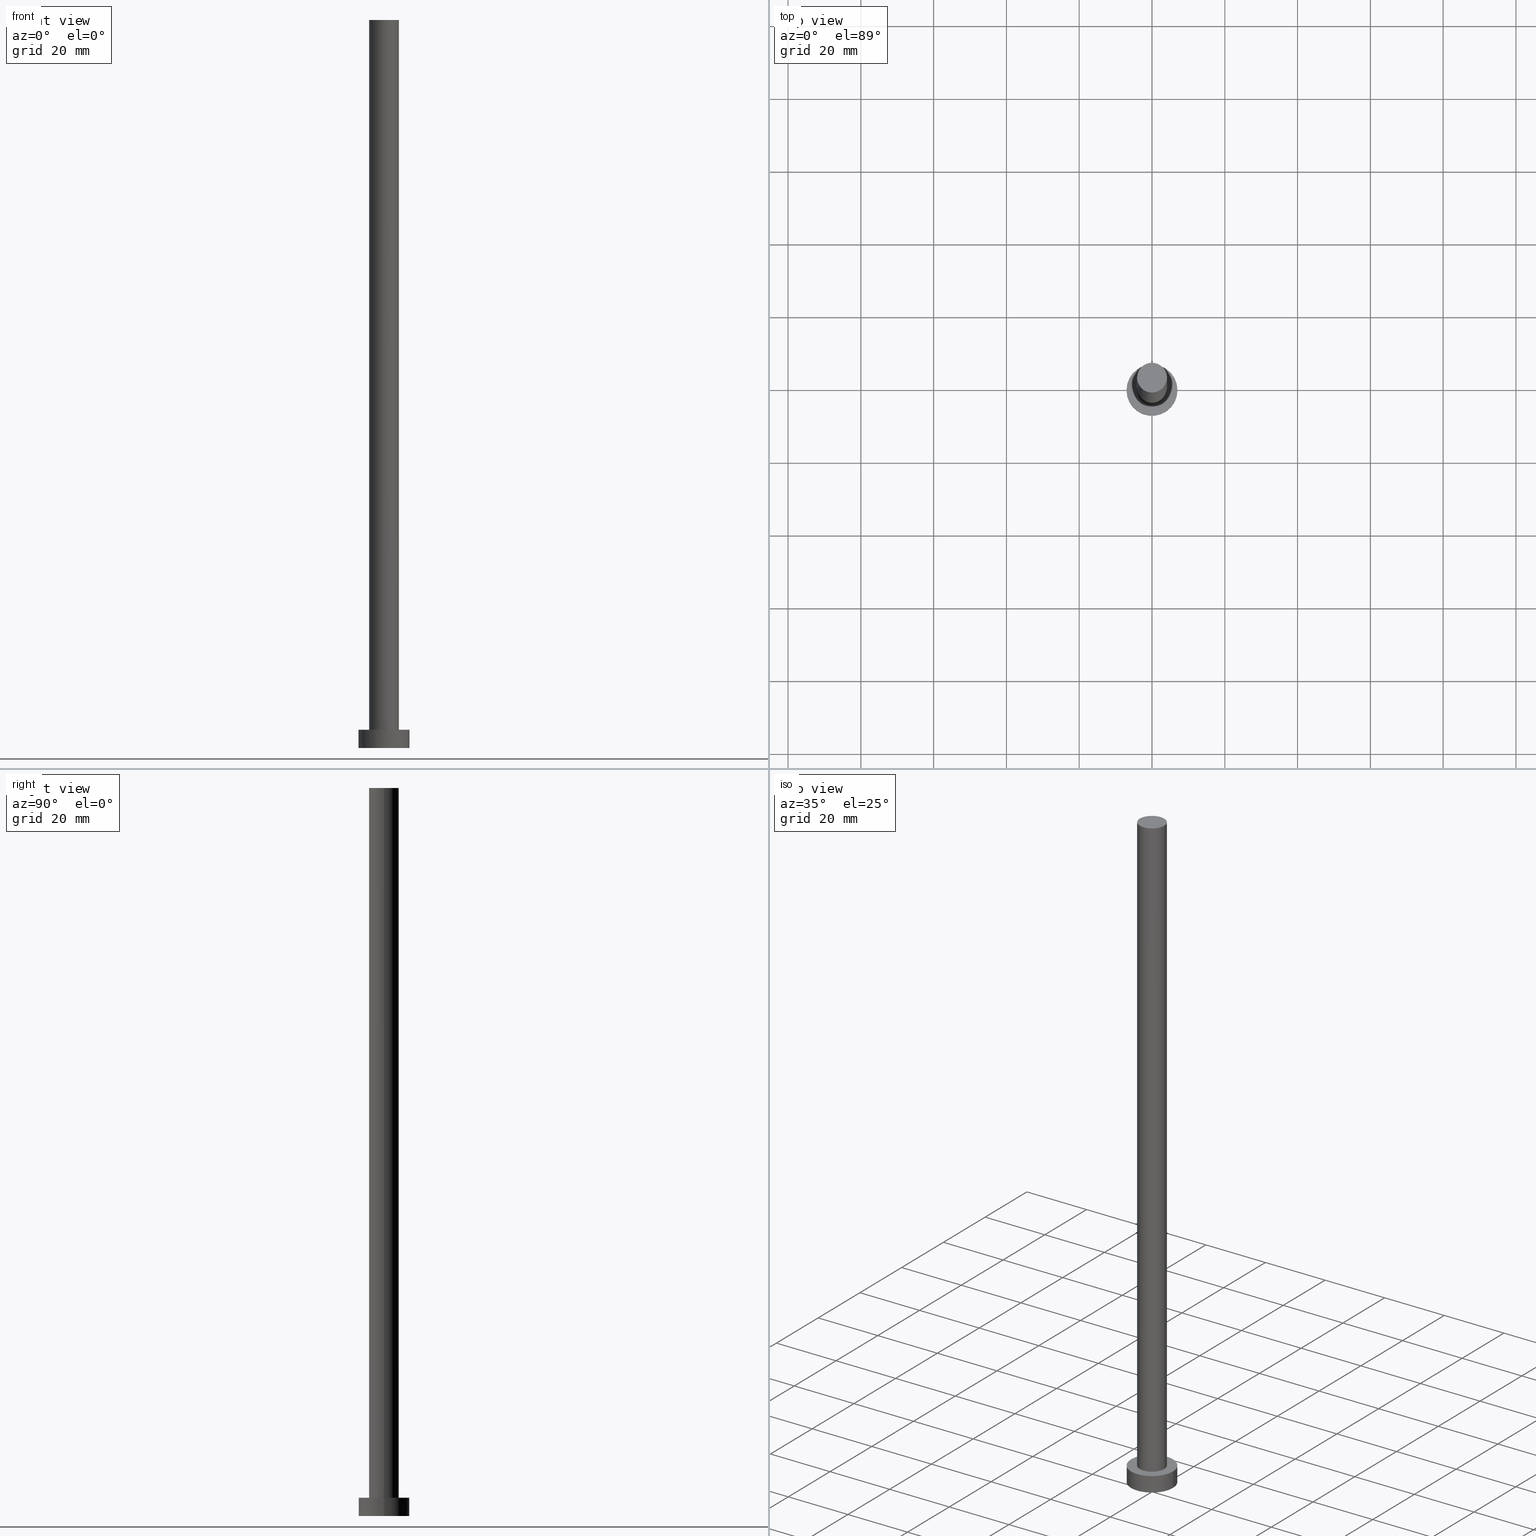
[diagram: canonical four-view strip — front | top / right | iso, engineering-drawing reading convention]
A machine part, canonical four-view strip (front | top / right | iso — engineering-drawing reading convention). The complete STEP part file that produces these views, byte-faithful:
ISO-10303-21;
HEADER;
FILE_DESCRIPTION (( 'STEP AP203' ),
    '1' );
FILE_NAME ('7127.STEP',
    '2023-02-12T11:18:13',
    ( '' ),
    ( '' ),
    'SwSTEP 2.0',
    'SolidWorks 2019',
    '' );
FILE_SCHEMA (( 'CONFIG_CONTROL_DESIGN' ));
ENDSEC;

DATA;
#1 = MANIFOLD_SOLID_BREP ( 'P�idat vysunut�m3', #26 ) ;
#2 = APPROVAL_DATE_TIME ( #42, #80 ) ;
#3 = DATE_AND_TIME ( #181, #213 ) ;
#4 = ORIENTED_EDGE ( 'NONE', *, *, #106, .T. ) ;
#5 = ADVANCED_FACE ( 'NONE', ( #139 ), #6, .T. ) ;
#6 = CYLINDRICAL_SURFACE ( 'NONE', #115, 7.000000000000000000 ) ;
#7 = DIRECTION ( 'NONE',  ( -0.000000000000000000, -0.000000000000000000, -1.000000000000000000 ) ) ;
#8 = ORIENTED_EDGE ( 'NONE', *, *, #95, .T. ) ;
#9 = FACE_BOUND ( 'NONE', #131, .T. ) ;
#10 = EDGE_CURVE ( 'NONE', #21, #197, #218, .T. ) ;
#11 = DIRECTION ( 'NONE',  ( 0.000000000000000000, 0.000000000000000000, 1.000000000000000000 ) ) ;
#12 = UNCERTAINTY_MEASURE_WITH_UNIT (LENGTH_MEASURE( 1.000000000000000082E-05 ), #13, 'distance_accuracy_value', 'NONE');
#13 =( LENGTH_UNIT ( ) NAMED_UNIT ( * ) SI_UNIT ( .MILLI., .METRE. ) );
#14 = FACE_OUTER_BOUND ( 'NONE', #149, .T. ) ;
#15 = CARTESIAN_POINT ( 'NONE',  ( 0.000000000000000000, 0.000000000000000000, 5.000000000000000000 ) ) ;
#16 = PERSON_AND_ORGANIZATION ( #193, #120 ) ;
#17 = EDGE_CURVE ( 'NONE', #38, #197, #123, .T. ) ;
#18 = EDGE_CURVE ( 'NONE', #178, #97, #163, .T. ) ;
#19 = ORIENTED_EDGE ( 'NONE', *, *, #49, .F. ) ;
#20 = APPROVAL_STATUS ( 'not_yet_approved' ) ;
#21 = VERTEX_POINT ( 'NONE', #117 ) ;
#22 = PERSON_AND_ORGANIZATION ( #193, #120 ) ;
#23 = ORIENTED_EDGE ( 'NONE', *, *, #52, .T. ) ;
#24 = DIRECTION ( 'NONE',  ( -0.000000000000000000, -0.000000000000000000, -1.000000000000000000 ) ) ;
#25 = APPLICATION_CONTEXT ( 'configuration controlled 3d designs of mechanical parts and assemblies' ) ;
#26 = CLOSED_SHELL ( 'NONE', ( #45, #5, #151, #56, #129, #224, #227 ) ) ;
#27 = CARTESIAN_POINT ( 'NONE',  ( 0.000000000000000000, 0.000000000000000000, 5.000000000000000000 ) ) ;
#28 = LINE ( 'NONE', #101, #254 ) ;
#29 = DIRECTION ( 'NONE',  ( 0.000000000000000000, 0.000000000000000000, 1.000000000000000000 ) ) ;
#30 = CARTESIAN_POINT ( 'NONE',  ( 0.000000000000000000, 0.000000000000000000, 5.000000000000000000 ) ) ;
#31 = AXIS2_PLACEMENT_3D ( 'NONE', #27, #85, #161 ) ;
#32 = CARTESIAN_POINT ( 'NONE',  ( 4.099999999999999645, 5.021051876504147385E-16, 200.0000000000000000 ) ) ;
#33 = ADVANCED_BREP_SHAPE_REPRESENTATION ( '7127', ( #1, #236 ), #132 ) ;
#34 = DIRECTION ( 'NONE',  ( -0.000000000000000000, -0.000000000000000000, -1.000000000000000000 ) ) ;
#35 = AXIS2_PLACEMENT_3D ( 'NONE', #169, #223, #205 ) ;
#36 = SECURITY_CLASSIFICATION ( '', '', #148 ) ;
#37 = CC_DESIGN_PERSON_AND_ORGANIZATION_ASSIGNMENT ( #194, #232, ( #141 ) ) ;
#38 = VERTEX_POINT ( 'NONE', #83 ) ;
#39 = ORIENTED_EDGE ( 'NONE', *, *, #231, .F. ) ;
#40 = APPROVAL_ROLE ( '' ) ;
#41 = ORIENTED_EDGE ( 'NONE', *, *, #231, .T. ) ;
#42 = DATE_AND_TIME ( #147, #71 ) ;
#43 = LOCAL_TIME ( 12, 18, 13.00000000000000000, #255 ) ;
#44 = VERTEX_POINT ( 'NONE', #67 ) ;
#45 = ADVANCED_FACE ( 'NONE', ( #64 ), #188, .T. ) ;
#46 = DIRECTION ( 'NONE',  ( -0.000000000000000000, -0.000000000000000000, -1.000000000000000000 ) ) ;
#47 = CARTESIAN_POINT ( 'NONE',  ( 0.000000000000000000, 0.000000000000000000, 0.000000000000000000 ) ) ;
#48 = APPROVAL_PERSON_ORGANIZATION ( #195, #159, #40 ) ;
#49 = EDGE_CURVE ( 'NONE', #44, #21, #109, .T. ) ;
#50 = DIRECTION ( 'NONE',  ( 1.000000000000000000, 0.000000000000000000, 0.000000000000000000 ) ) ;
#51 = DIRECTION ( 'NONE',  ( -1.000000000000000000, 0.000000000000000000, 0.000000000000000000 ) ) ;
#52 = EDGE_CURVE ( 'NONE', #235, #108, #251, .T. ) ;
#53 = DIRECTION ( 'NONE',  ( 0.000000000000000000, 0.000000000000000000, 1.000000000000000000 ) ) ;
#54 = MECHANICAL_CONTEXT ( 'NONE', #25, 'mechanical' ) ;
#55 = CC_DESIGN_APPROVAL ( #80, ( #141 ) ) ;
#56 = ADVANCED_FACE ( 'NONE', ( #9, #166 ), #203, .T. ) ;
#57 = APPROVAL ( #20, 'NEUR�EN�' ) ;
#58 = EDGE_LOOP ( 'NONE', ( #210, #128, #4, #8 ) ) ;
#59 = DATE_AND_TIME ( #60, #94 ) ;
#60 = CALENDAR_DATE ( 2023, 12, 2 ) ;
#61 = AXIS2_PLACEMENT_3D ( 'NONE', #221, #102, #162 ) ;
#62 = ORIENTED_EDGE ( 'NONE', *, *, #247, .T. ) ;
#63 = PRODUCT ( '7127', '7127', '', ( #54 ) ) ;
#64 = FACE_OUTER_BOUND ( 'NONE', #113, .T. ) ;
#65 = CARTESIAN_POINT ( 'NONE',  ( -4.099999999999999645, 0.000000000000000000, 200.0000000000000000 ) ) ;
#66 = AXIS2_PLACEMENT_3D ( 'NONE', #15, #72, #70 ) ;
#67 = CARTESIAN_POINT ( 'NONE',  ( 4.099999999999999645, 5.021051876504147385E-16, 200.0000000000000000 ) ) ;
#68 = CARTESIAN_POINT ( 'NONE',  ( -7.000000000000000000, 0.000000000000000000, 0.000000000000000000 ) ) ;
#69 = CARTESIAN_POINT ( 'NONE',  ( 0.000000000000000000, 0.000000000000000000, 200.0000000000000000 ) ) ;
#70 = DIRECTION ( 'NONE',  ( 1.000000000000000000, 0.000000000000000000, 0.000000000000000000 ) ) ;
#71 = LOCAL_TIME ( 12, 18, 13.00000000000000000, #74 ) ;
#72 = DIRECTION ( 'NONE',  ( 0.000000000000000000, 0.000000000000000000, 1.000000000000000000 ) ) ;
#73 = LINE ( 'NONE', #32, #179 ) ;
#74 = COORDINATED_UNIVERSAL_TIME_OFFSET ( 1, 0, .AHEAD. ) ;
#75 = APPROVAL_DATE_TIME ( #59, #57 ) ;
#76 = ORIENTED_EDGE ( 'NONE', *, *, #10, .F. ) ;
#77 = DATE_AND_TIME ( #209, #43 ) ;
#78 = EDGE_LOOP ( 'NONE', ( #156, #230 ) ) ;
#79 = APPROVAL_STATUS ( 'not_yet_approved' ) ;
#80 = APPROVAL ( #89, 'NEUR�EN�' ) ;
#81 = EDGE_LOOP ( 'NONE', ( #155, #182, #174, #180 ) ) ;
#82 = DIRECTION ( 'NONE',  ( 0.000000000000000000, 0.000000000000000000, 1.000000000000000000 ) ) ;
#83 = CARTESIAN_POINT ( 'NONE',  ( 4.099999999999999645, 5.021051876504147385E-16, 5.000000000000000000 ) ) ;
#84 = CARTESIAN_POINT ( 'NONE',  ( 0.000000000000000000, 0.000000000000000000, 5.000000000000000000 ) ) ;
#85 = DIRECTION ( 'NONE',  ( 0.000000000000000000, 0.000000000000000000, 1.000000000000000000 ) ) ;
#86 = CARTESIAN_POINT ( 'NONE',  ( -7.000000000000000000, 0.000000000000000000, 5.000000000000000000 ) ) ;
#87 = PLANE ( 'NONE',  #35 ) ;
#88 = CC_DESIGN_APPROVAL ( #159, ( #36 ) ) ;
#89 = APPROVAL_STATUS ( 'not_yet_approved' ) ;
#90 = AXIS2_PLACEMENT_3D ( 'NONE', #135, #11, #98 ) ;
#91 = APPROVAL_ROLE ( '' ) ;
#92 = ORIENTED_EDGE ( 'NONE', *, *, #95, .F. ) ;
#93 = CIRCLE ( 'NONE', #198, 4.099999999999999645 ) ;
#94 = LOCAL_TIME ( 12, 18, 13.00000000000000000, #154 ) ;
#95 = EDGE_CURVE ( 'NONE', #97, #178, #171, .T. ) ;
#96 = EDGE_LOOP ( 'NONE', ( #92, #176 ) ) ;
#97 = VERTEX_POINT ( 'NONE', #68 ) ;
#98 = DIRECTION ( 'NONE',  ( 1.000000000000000000, 0.000000000000000000, 0.000000000000000000 ) ) ;
#99 = EDGE_CURVE ( 'NONE', #108, #235, #234, .T. ) ;
#100 = CARTESIAN_POINT ( 'NONE',  ( 0.000000000000000000, 0.000000000000000000, 200.0000000000000000 ) ) ;
#101 = CARTESIAN_POINT ( 'NONE',  ( 7.000000000000000000, 8.572527594031473190E-16, 5.000000000000000000 ) ) ;
#102 = DIRECTION ( 'NONE',  ( 0.000000000000000000, 0.000000000000000000, 1.000000000000000000 ) ) ;
#103 = AXIS2_PLACEMENT_3D ( 'NONE', #100, #243, #201 ) ;
#104 = DIRECTION ( 'NONE',  ( 0.000000000000000000, 0.000000000000000000, 1.000000000000000000 ) ) ;
#105 = DATE_AND_TIME ( #127, #189 ) ;
#106 = EDGE_CURVE ( 'NONE', #108, #97, #140, .T. ) ;
#107 = COORDINATED_UNIVERSAL_TIME_OFFSET ( 1, 0, .AHEAD. ) ;
#108 = VERTEX_POINT ( 'NONE', #86 ) ;
#109 = CIRCLE ( 'NONE', #103, 4.099999999999999645 ) ;
#110 = AXIS2_PLACEMENT_3D ( 'NONE', #47, #82, #160 ) ;
#111 = PERSON_AND_ORGANIZATION ( #193, #120 ) ;
#112 = ORIENTED_EDGE ( 'NONE', *, *, #170, .F. ) ;
#113 = EDGE_LOOP ( 'NONE', ( #19, #41, #212, #76 ) ) ;
#114 = DIRECTION ( 'NONE',  ( -1.000000000000000000, 0.000000000000000000, 0.000000000000000000 ) ) ;
#115 = AXIS2_PLACEMENT_3D ( 'NONE', #242, #24, #114 ) ;
#116 = DIRECTION ( 'NONE',  ( -0.000000000000000000, -0.000000000000000000, -1.000000000000000000 ) ) ;
#117 = CARTESIAN_POINT ( 'NONE',  ( -4.099999999999999645, 0.000000000000000000, 200.0000000000000000 ) ) ;
#118 = CC_DESIGN_PERSON_AND_ORGANIZATION_ASSIGNMENT ( #125, #252, ( #63 ) ) ;
#119 = PLANE ( 'NONE',  #110 ) ;
#120 = ORGANIZATION ( 'NEUR�EN�', 'NEUR�EN�', '' ) ;
#121 = DIRECTION ( 'NONE',  ( 1.000000000000000000, 0.000000000000000000, 0.000000000000000000 ) ) ;
#122 = DIRECTION ( 'NONE',  ( -1.000000000000000000, 0.000000000000000000, 0.000000000000000000 ) ) ;
#123 = CIRCLE ( 'NONE', #136, 4.099999999999999645 ) ;
#124 = AXIS2_PLACEMENT_3D ( 'NONE', #30, #116, #202 ) ;
#125 = PERSON_AND_ORGANIZATION ( #193, #120 ) ;
#126 = ORIENTED_EDGE ( 'NONE', *, *, #247, .F. ) ;
#127 = CALENDAR_DATE ( 2023, 12, 2 ) ;
#128 = ORIENTED_EDGE ( 'NONE', *, *, #99, .F. ) ;
#129 = ADVANCED_FACE ( 'NONE', ( #239 ), #119, .F. ) ;
#130 = PERSON_AND_ORGANIZATION_ROLE ( 'creator' ) ;
#131 = EDGE_LOOP ( 'NONE', ( #126, #233 ) ) ;
#132 =( GEOMETRIC_REPRESENTATION_CONTEXT ( 3 ) GLOBAL_UNCERTAINTY_ASSIGNED_CONTEXT ( ( #12 ) ) GLOBAL_UNIT_ASSIGNED_CONTEXT ( ( #13, #192, #225 ) ) REPRESENTATION_CONTEXT ( 'NONE', 'WORKASPACE' ) );
#133 = ORIENTED_EDGE ( 'NONE', *, *, #10, .T. ) ;
#134 = CYLINDRICAL_SURFACE ( 'NONE', #124, 7.000000000000000000 ) ;
#135 = CARTESIAN_POINT ( 'NONE',  ( 0.000000000000000000, 0.000000000000000000, 0.000000000000000000 ) ) ;
#136 = AXIS2_PLACEMENT_3D ( 'NONE', #84, #29, #185 ) ;
#137 = AXIS2_PLACEMENT_3D ( 'NONE', #191, #143, #122 ) ;
#138 = APPROVAL_PERSON_ORGANIZATION ( #22, #57, #91 ) ;
#139 = FACE_OUTER_BOUND ( 'NONE', #81, .T. ) ;
#140 = LINE ( 'NONE', #219, #237 ) ;
#141 = PRODUCT_DEFINITION ( 'NEZN�M�', '', #217, #167 ) ;
#142 = CYLINDRICAL_SURFACE ( 'NONE', #137, 4.099999999999999645 ) ;
#143 = DIRECTION ( 'NONE',  ( -0.000000000000000000, -0.000000000000000000, -1.000000000000000000 ) ) ;
#144 = CARTESIAN_POINT ( 'NONE',  ( 7.000000000000000000, 8.572527594031473190E-16, 0.000000000000000000 ) ) ;
#145 = DIRECTION ( 'NONE',  ( 1.000000000000000000, 0.000000000000000000, 0.000000000000000000 ) ) ;
#146 = CC_DESIGN_PERSON_AND_ORGANIZATION_ASSIGNMENT ( #208, #173, ( #217 ) ) ;
#147 = CALENDAR_DATE ( 2023, 12, 2 ) ;
#148 = SECURITY_CLASSIFICATION_LEVEL ( 'unclassified' ) ;
#149 = EDGE_LOOP ( 'NONE', ( #39, #112, #133, #62 ) ) ;
#150 = DATE_TIME_ROLE ( 'creation_date' ) ;
#151 = ADVANCED_FACE ( 'NONE', ( #204 ), #134, .T. ) ;
#152 = VECTOR ( 'NONE', #46, 1000.000000000000000 ) ;
#153 = AXIS2_PLACEMENT_3D ( 'NONE', #216, #53, #121 ) ;
#154 = COORDINATED_UNIVERSAL_TIME_OFFSET ( 1, 0, .AHEAD. ) ;
#155 = ORIENTED_EDGE ( 'NONE', *, *, #52, .F. ) ;
#156 = ORIENTED_EDGE ( 'NONE', *, *, #170, .T. ) ;
#157 = CIRCLE ( 'NONE', #66, 4.099999999999999645 ) ;
#158 = APPROVAL_PERSON_ORGANIZATION ( #16, #80, #172 ) ;
#159 = APPROVAL ( #79, 'NEUR�EN�' ) ;
#160 = DIRECTION ( 'NONE',  ( 1.000000000000000000, 0.000000000000000000, -0.000000000000000000 ) ) ;
#161 = DIRECTION ( 'NONE',  ( 1.000000000000000000, 0.000000000000000000, -0.000000000000000000 ) ) ;
#162 = DIRECTION ( 'NONE',  ( 1.000000000000000000, 0.000000000000000000, 0.000000000000000000 ) ) ;
#163 = CIRCLE ( 'NONE', #177, 7.000000000000000000 ) ;
#164 = CARTESIAN_POINT ( 'NONE',  ( 0.000000000000000000, 0.000000000000000000, 0.000000000000000000 ) ) ;
#165 = APPROVAL_DATE_TIME ( #3, #159 ) ;
#166 = FACE_OUTER_BOUND ( 'NONE', #229, .T. ) ;
#167 = DESIGN_CONTEXT ( 'detailed design', #206, 'design' ) ;
#168 = AXIS2_PLACEMENT_3D ( 'NONE', #69, #7, #51 ) ;
#169 = CARTESIAN_POINT ( 'NONE',  ( 0.000000000000000000, 0.000000000000000000, 200.0000000000000000 ) ) ;
#170 = EDGE_CURVE ( 'NONE', #21, #44, #93, .T. ) ;
#171 = CIRCLE ( 'NONE', #90, 7.000000000000000000 ) ;
#172 = APPROVAL_ROLE ( '' ) ;
#173 = PERSON_AND_ORGANIZATION_ROLE ( 'design_supplier' ) ;
#174 = ORIENTED_EDGE ( 'NONE', *, *, #18, .T. ) ;
#175 = EDGE_CURVE ( 'NONE', #235, #178, #28, .T. ) ;
#176 = ORIENTED_EDGE ( 'NONE', *, *, #18, .F. ) ;
#177 = AXIS2_PLACEMENT_3D ( 'NONE', #164, #183, #50 ) ;
#178 = VERTEX_POINT ( 'NONE', #144 ) ;
#179 = VECTOR ( 'NONE', #34, 1000.000000000000000 ) ;
#180 = ORIENTED_EDGE ( 'NONE', *, *, #106, .F. ) ;
#181 = CALENDAR_DATE ( 2023, 12, 2 ) ;
#182 = ORIENTED_EDGE ( 'NONE', *, *, #175, .T. ) ;
#183 = DIRECTION ( 'NONE',  ( 0.000000000000000000, 0.000000000000000000, 1.000000000000000000 ) ) ;
#184 = CC_DESIGN_SECURITY_CLASSIFICATION ( #36, ( #217 ) ) ;
#185 = DIRECTION ( 'NONE',  ( 1.000000000000000000, 0.000000000000000000, 0.000000000000000000 ) ) ;
#186 = CC_DESIGN_DATE_AND_TIME_ASSIGNMENT ( #77, #150, ( #141 ) ) ;
#187 = DIRECTION ( 'NONE',  ( -0.000000000000000000, -0.000000000000000000, -1.000000000000000000 ) ) ;
#188 = CYLINDRICAL_SURFACE ( 'NONE', #168, 4.099999999999999645 ) ;
#189 = LOCAL_TIME ( 12, 18, 13.00000000000000000, #107 ) ;
#190 = DIRECTION ( 'NONE',  ( 1.000000000000000000, 0.000000000000000000, 0.000000000000000000 ) ) ;
#191 = CARTESIAN_POINT ( 'NONE',  ( 0.000000000000000000, 0.000000000000000000, 200.0000000000000000 ) ) ;
#192 =( NAMED_UNIT ( * ) PLANE_ANGLE_UNIT ( ) SI_UNIT ( $, .RADIAN. ) );
#193 = PERSON ( 'NEUR�EN�', 'NEUR�EN�', 'NEUR�EN�', ('NEUR�EN�'), ('NEUR�EN�'), ('NEUR�EN�') ) ;
#194 = PERSON_AND_ORGANIZATION ( #193, #120 ) ;
#195 = PERSON_AND_ORGANIZATION ( #193, #120 ) ;
#196 = COORDINATED_UNIVERSAL_TIME_OFFSET ( 1, 0, .AHEAD. ) ;
#197 = VERTEX_POINT ( 'NONE', #249 ) ;
#198 = AXIS2_PLACEMENT_3D ( 'NONE', #214, #104, #190 ) ;
#199 = CC_DESIGN_APPROVAL ( #57, ( #217 ) ) ;
#200 = DATE_TIME_ROLE ( 'classification_date' ) ;
#201 = DIRECTION ( 'NONE',  ( 1.000000000000000000, 0.000000000000000000, 0.000000000000000000 ) ) ;
#202 = DIRECTION ( 'NONE',  ( -1.000000000000000000, 0.000000000000000000, 0.000000000000000000 ) ) ;
#203 = PLANE ( 'NONE',  #31 ) ;
#204 = FACE_OUTER_BOUND ( 'NONE', #58, .T. ) ;
#205 = DIRECTION ( 'NONE',  ( 1.000000000000000000, 0.000000000000000000, -0.000000000000000000 ) ) ;
#206 = APPLICATION_CONTEXT ( 'configuration controlled 3d designs of mechanical parts and assemblies' ) ;
#207 = APPLICATION_PROTOCOL_DEFINITION ( 'international standard', 'config_control_design', 1994, #206 ) ;
#208 = PERSON_AND_ORGANIZATION ( #193, #120 ) ;
#209 = CALENDAR_DATE ( 2023, 12, 2 ) ;
#210 = ORIENTED_EDGE ( 'NONE', *, *, #175, .F. ) ;
#211 = PERSON_AND_ORGANIZATION ( #193, #120 ) ;
#212 = ORIENTED_EDGE ( 'NONE', *, *, #17, .T. ) ;
#213 = LOCAL_TIME ( 12, 18, 13.00000000000000000, #196 ) ;
#214 = CARTESIAN_POINT ( 'NONE',  ( 0.000000000000000000, 0.000000000000000000, 200.0000000000000000 ) ) ;
#215 = CC_DESIGN_PERSON_AND_ORGANIZATION_ASSIGNMENT ( #111, #228, ( #36 ) ) ;
#216 = CARTESIAN_POINT ( 'NONE',  ( 0.000000000000000000, 0.000000000000000000, 5.000000000000000000 ) ) ;
#217 = PRODUCT_DEFINITION_FORMATION_WITH_SPECIFIED_SOURCE ( 'LIBOVOLN�', '', #63, .NOT_KNOWN. ) ;
#218 = LINE ( 'NONE', #65, #152 ) ;
#219 = CARTESIAN_POINT ( 'NONE',  ( -7.000000000000000000, 0.000000000000000000, 5.000000000000000000 ) ) ;
#220 = CC_DESIGN_DATE_AND_TIME_ASSIGNMENT ( #105, #200, ( #36 ) ) ;
#221 = CARTESIAN_POINT ( 'NONE',  ( 0.000000000000000000, 0.000000000000000000, 5.000000000000000000 ) ) ;
#222 = DIRECTION ( 'NONE',  ( 0.000000000000000000, 0.000000000000000000, 1.000000000000000000 ) ) ;
#223 = DIRECTION ( 'NONE',  ( 0.000000000000000000, 0.000000000000000000, 1.000000000000000000 ) ) ;
#224 = ADVANCED_FACE ( 'NONE', ( #14 ), #142, .T. ) ;
#225 =( NAMED_UNIT ( * ) SI_UNIT ( $, .STERADIAN. ) SOLID_ANGLE_UNIT ( ) );
#226 = FACE_OUTER_BOUND ( 'NONE', #78, .T. ) ;
#227 = ADVANCED_FACE ( 'NONE', ( #226 ), #87, .T. ) ;
#228 = PERSON_AND_ORGANIZATION_ROLE ( 'classification_officer' ) ;
#229 = EDGE_LOOP ( 'NONE', ( #253, #23 ) ) ;
#230 = ORIENTED_EDGE ( 'NONE', *, *, #49, .T. ) ;
#231 = EDGE_CURVE ( 'NONE', #44, #38, #73, .T. ) ;
#232 = PERSON_AND_ORGANIZATION_ROLE ( 'creator' ) ;
#233 = ORIENTED_EDGE ( 'NONE', *, *, #17, .F. ) ;
#234 = CIRCLE ( 'NONE', #153, 7.000000000000000000 ) ;
#235 = VERTEX_POINT ( 'NONE', #248 ) ;
#236 = AXIS2_PLACEMENT_3D ( 'NONE', #250, #222, #145 ) ;
#237 = VECTOR ( 'NONE', #241, 1000.000000000000000 ) ;
#238 = PRODUCT_RELATED_PRODUCT_CATEGORY ( 'detail', '', ( #63 ) ) ;
#239 = FACE_OUTER_BOUND ( 'NONE', #96, .T. ) ;
#240 = SHAPE_DEFINITION_REPRESENTATION ( #244, #33 ) ;
#241 = DIRECTION ( 'NONE',  ( -0.000000000000000000, -0.000000000000000000, -1.000000000000000000 ) ) ;
#242 = CARTESIAN_POINT ( 'NONE',  ( 0.000000000000000000, 0.000000000000000000, 5.000000000000000000 ) ) ;
#243 = DIRECTION ( 'NONE',  ( 0.000000000000000000, 0.000000000000000000, 1.000000000000000000 ) ) ;
#244 = PRODUCT_DEFINITION_SHAPE ( 'NONE', 'NONE',  #141 ) ;
#245 = CC_DESIGN_PERSON_AND_ORGANIZATION_ASSIGNMENT ( #211, #130, ( #217 ) ) ;
#246 = APPLICATION_PROTOCOL_DEFINITION ( 'international standard', 'config_control_design', 1994, #25 ) ;
#247 = EDGE_CURVE ( 'NONE', #197, #38, #157, .T. ) ;
#248 = CARTESIAN_POINT ( 'NONE',  ( 7.000000000000000000, 8.572527594031473190E-16, 5.000000000000000000 ) ) ;
#249 = CARTESIAN_POINT ( 'NONE',  ( -4.099999999999999645, 0.000000000000000000, 5.000000000000000000 ) ) ;
#250 = CARTESIAN_POINT ( 'NONE',  ( 0.000000000000000000, 0.000000000000000000, 0.000000000000000000 ) ) ;
#251 = CIRCLE ( 'NONE', #61, 7.000000000000000000 ) ;
#252 = PERSON_AND_ORGANIZATION_ROLE ( 'design_owner' ) ;
#253 = ORIENTED_EDGE ( 'NONE', *, *, #99, .T. ) ;
#254 = VECTOR ( 'NONE', #187, 1000.000000000000000 ) ;
#255 = COORDINATED_UNIVERSAL_TIME_OFFSET ( 1, 0, .AHEAD. ) ;
ENDSEC;
END-ISO-10303-21;
